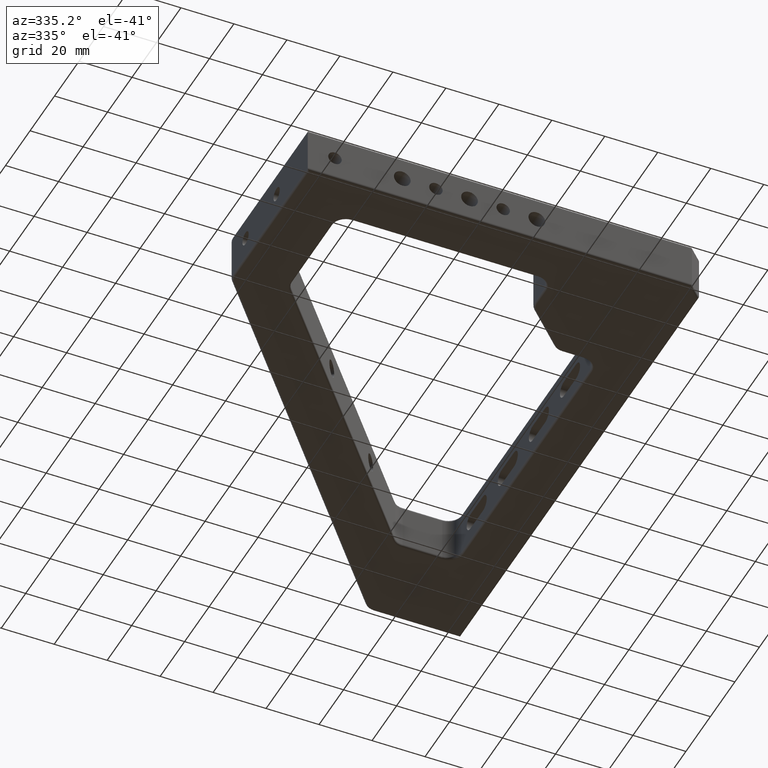
[diagram: clean part render]
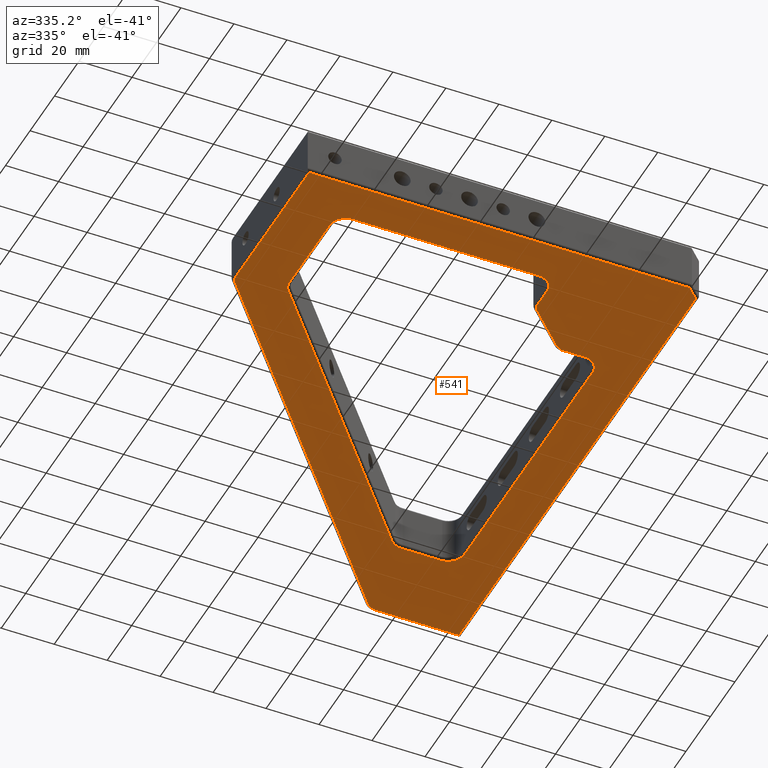
[diagram: same view with one face highlighted and labeled with its STEP entity id]
A machine part, auxiliary view. The second image highlights one B-rep face of the part: STEP entity #541.
In plain terms, the highlighted planar face has unit normal (0, 0, 1).
Its self-contained STEP definition (entity closure, byte-faithful):
#15 = LINE ( 'NONE', #1854, #3603 ) ;
#23 = LINE ( 'NONE', #4081, #1819 ) ;
#29 = AXIS2_PLACEMENT_3D ( 'NONE', #633, #3144, #986 ) ;
#39 = CARTESIAN_POINT ( 'NONE',  ( 100.9999999999999900, 23.00000000000000700, 0.0000000000000000000 ) ) ;
#80 = DIRECTION ( 'NONE',  ( 1.000000000000000000, 0.0000000000000000000, 0.0000000000000000000 ) ) ;
#81 = EDGE_CURVE ( 'NONE', #1273, #723, #3414, .T. ) ;
#97 = FACE_BOUND ( 'NONE', #1775, .T. ) ;
#108 = DIRECTION ( 'NONE',  ( -0.0000000000000000000, 0.0000000000000000000, 1.000000000000000000 ) ) ;
#116 = VECTOR ( 'NONE', #2713, 1000.000000000000000 ) ;
#130 = CARTESIAN_POINT ( 'NONE',  ( 101.0000000000000000, 30.92893218813452800, 0.0000000000000000000 ) ) ;
#213 = CIRCLE ( 'NONE', #1871, 6.000000000000005300 ) ;
#236 = LINE ( 'NONE', #3103, #116 ) ;
#330 = CIRCLE ( 'NONE', #29, 4.000000000000003600 ) ;
#363 = VERTEX_POINT ( 'NONE', #4620 ) ;
#382 = DIRECTION ( 'NONE',  ( 3.444736514772037100E-017, 1.000000000000000000, -0.0000000000000000000 ) ) ;
#401 = CARTESIAN_POINT ( 'NONE',  ( -1.474514954580286200E-015, 17.00000000000000000, 0.0000000000000000000 ) ) ;
#409 = DIRECTION ( 'NONE',  ( 1.000000000000000000, 0.0000000000000000000, 0.0000000000000000000 ) ) ;
#412 = EDGE_CURVE ( 'NONE', #3543, #1273, #542, .T. ) ;
#479 = EDGE_CURVE ( 'NONE', #2958, #1460, #2234, .T. ) ;
#480 = CIRCLE ( 'NONE', #1695, 5.999999999999998200 ) ;
#515 = ORIENTED_EDGE ( 'NONE', *, *, #3489, .T. ) ;
#541 = ADVANCED_FACE ( 'NONE', ( #1156, #97 ), #718, .F. ) ;
#542 = CIRCLE ( 'NONE', #2651, 4.000000000000003600 ) ;
#549 = VECTOR ( 'NONE', #1969, 1000.000000000000000 ) ;
#585 = VECTOR ( 'NONE', #3661, 1000.000000000000000 ) ;
#613 = ORIENTED_EDGE ( 'NONE', *, *, #4040, .T. ) ;
#619 = ORIENTED_EDGE ( 'NONE', *, *, #1654, .T. ) ;
#633 = CARTESIAN_POINT ( 'NONE',  ( 105.0000000000000100, 30.92893218813452400, 0.0000000000000000000 ) ) ;
#636 = CARTESIAN_POINT ( 'NONE',  ( 1.000000000000002200, 61.12848568033405200, 0.0000000000000000000 ) ) ;
#666 = ORIENTED_EDGE ( 'NONE', *, *, #4242, .T. ) ;
#675 = VERTEX_POINT ( 'NONE', #2955 ) ;
#679 = LINE ( 'NONE', #401, #4395 ) ;
#685 = CARTESIAN_POINT ( 'NONE',  ( -17.58898750380362900, 14.75891292722332300, 0.0000000000000000000 ) ) ;
#704 = DIRECTION ( 'NONE',  ( -0.0000000000000000000, 0.0000000000000000000, 1.000000000000000000 ) ) ;
#718 = PLANE ( 'NONE',  #866 ) ;
#723 = VERTEX_POINT ( 'NONE', #2662 ) ;
#731 = ORIENTED_EDGE ( 'NONE', *, *, #3276, .T. ) ;
#765 = VERTEX_POINT ( 'NONE', #3392 ) ;
#768 = ORIENTED_EDGE ( 'NONE', *, *, #1872, .T. ) ;
#795 = CARTESIAN_POINT ( 'NONE',  ( 20.40373334128611300, 60.03687448678822100, 0.0000000000000000000 ) ) ;
#835 = ORIENTED_EDGE ( 'NONE', *, *, #4431, .T. ) ;
#843 = VERTEX_POINT ( 'NONE', #2372 ) ;
#848 = CIRCLE ( 'NONE', #910, 4.000000000000003600 ) ;
#866 = AXIS2_PLACEMENT_3D ( 'NONE', #2517, #4304, #3229 ) ;
#910 = AXIS2_PLACEMENT_3D ( 'NONE', #2035, #4535, #2398 ) ;
#932 = CARTESIAN_POINT ( 'NONE',  ( -0.0000000000000000000, 1.000000000000000000, 0.0000000000000000000 ) ) ;
#975 = EDGE_CURVE ( 'NONE', #1885, #3543, #4418, .T. ) ;
#976 = DIRECTION ( 'NONE',  ( -0.0000000000000000000, 0.0000000000000000000, 1.000000000000000000 ) ) ;
#986 = DIRECTION ( 'NONE',  ( 1.000000000000000000, 0.0000000000000000000, 0.0000000000000000000 ) ) ;
#995 = ORIENTED_EDGE ( 'NONE', *, *, #975, .T. ) ;
#1071 = CARTESIAN_POINT ( 'NONE',  ( 24.99999999999999300, 56.18014882866899000, 0.0000000000000000000 ) ) ;
#1105 = VERTEX_POINT ( 'NONE', #636 ) ;
#1143 = CARTESIAN_POINT ( 'NONE',  ( 0.0000000000000000000, 165.9999999999999700, 0.0000000000000000000 ) ) ;
#1156 = FACE_OUTER_BOUND ( 'NONE', #3373, .T. ) ;
#1197 = DIRECTION ( 'NONE',  ( -8.673617379884037900E-017, -1.000000000000000000, 0.0000000000000000000 ) ) ;
#1236 = DIRECTION ( 'NONE',  ( -0.7071067811865455700, -0.7071067811865493500, -0.0000000000000000000 ) ) ;
#1273 = VERTEX_POINT ( 'NONE', #4343 ) ;
#1275 = DIRECTION ( 'NONE',  ( 0.7071067811865486800, 0.7071067811865464600, 0.0000000000000000000 ) ) ;
#1284 = VERTEX_POINT ( 'NONE', #3998 ) ;
#1289 = CARTESIAN_POINT ( 'NONE',  ( 94.99999999999998600, 17.00000000000000700, 0.0000000000000000000 ) ) ;
#1292 = VECTOR ( 'NONE', #1275, 999.9999999999998900 ) ;
#1313 = CARTESIAN_POINT ( 'NONE',  ( -30.22996064225292700, 25.36594882541796600, 0.0000000000000000000 ) ) ;
#1324 = DIRECTION ( 'NONE',  ( -2.413528314402514600E-016, 1.000000000000000000, -0.0000000000000000000 ) ) ;
#1353 = EDGE_CURVE ( 'NONE', #363, #1105, #2501, .T. ) ;
#1360 = AXIS2_PLACEMENT_3D ( 'NONE', #1071, #3570, #1427 ) ;
#1398 = CARTESIAN_POINT ( 'NONE',  ( 127.0000000000000000, 165.9999999999999700, 0.0000000000000000000 ) ) ;
#1421 = LINE ( 'NONE', #1143, #585 ) ;
#1427 = DIRECTION ( 'NONE',  ( 1.000000000000000000, 0.0000000000000000000, 0.0000000000000000000 ) ) ;
#1450 = VERTEX_POINT ( 'NONE', #3996 ) ;
#1460 = VERTEX_POINT ( 'NONE', #795 ) ;
#1499 = EDGE_CURVE ( 'NONE', #4379, #4539, #3001, .T. ) ;
#1543 = EDGE_CURVE ( 'NONE', #3307, #3878, #15, .T. ) ;
#1551 = EDGE_CURVE ( 'NONE', #1105, #1885, #1812, .T. ) ;
#1572 = DIRECTION ( 'NONE',  ( -0.0000000000000000000, 0.0000000000000000000, 1.000000000000000000 ) ) ;
#1588 = CIRCLE ( 'NONE', #4392, 6.000000000000005300 ) ;
#1617 = CARTESIAN_POINT ( 'NONE',  ( 94.99999999999998600, 23.00000000000001100, 0.0000000000000000000 ) ) ;
#1654 = EDGE_CURVE ( 'NONE', #4539, #1284, #1421, .T. ) ;
#1695 = AXIS2_PLACEMENT_3D ( 'NONE', #3128, #976, #3493 ) ;
#1775 = EDGE_LOOP ( 'NONE', ( #2534, #768, #3153, #731, #3530, #4115, #1937, #613, #835, #2750, #619, #3411, #3989, #2431, #666, #3035 ) ) ;
#1794 = EDGE_CURVE ( 'NONE', #1284, #2958, #2874, .T. ) ;
#1812 = CIRCLE ( 'NONE', #3348, 4.000000000000000000 ) ;
#1815 = DIRECTION ( 'NONE',  ( 1.000000000000000000, 8.673617379884035500E-017, 0.0000000000000000000 ) ) ;
#1819 = VECTOR ( 'NONE', #1197, 1000.000000000000000 ) ;
#1854 = CARTESIAN_POINT ( 'NONE',  ( 100.9999999999999700, -9.344377123928399200E-014, 0.0000000000000000000 ) ) ;
#1871 = AXIS2_PLACEMENT_3D ( 'NONE', #2860, #704, #3223 ) ;
#1872 = EDGE_CURVE ( 'NONE', #1912, #3307, #1588, .T. ) ;
#1885 = VERTEX_POINT ( 'NONE', #2347 ) ;
#1905 = CARTESIAN_POINT ( 'NONE',  ( 18.99999999999999300, 23.00000000000000400, 0.0000000000000000000 ) ) ;
#1912 = VERTEX_POINT ( 'NONE', #1289 ) ;
#1921 = EDGE_CURVE ( 'NONE', #843, #363, #4239, .T. ) ;
#1937 = ORIENTED_EDGE ( 'NONE', *, *, #4127, .T. ) ;
#1963 = CARTESIAN_POINT ( 'NONE',  ( 144.2928932188134500, 0.7071067811865311400, 0.0000000000000000000 ) ) ;
#1969 = DIRECTION ( 'NONE',  ( 1.000000000000000000, -0.0000000000000000000, 0.0000000000000000000 ) ) ;
#1986 = DIRECTION ( 'NONE',  ( 1.000000000000000000, 0.0000000000000000000, 0.0000000000000000000 ) ) ;
#2018 = DIRECTION ( 'NONE',  ( -1.000000000000000000, -0.0000000000000000000, -0.0000000000000000000 ) ) ;
#2035 = CARTESIAN_POINT ( 'NONE',  ( 119.0710678118655200, 44.99999999999999300, 0.0000000000000000000 ) ) ;
#2196 = CARTESIAN_POINT ( 'NONE',  ( 102.1715728752538300, 33.75735931288072300, 0.0000000000000000000 ) ) ;
#2210 = EDGE_CURVE ( 'NONE', #1450, #1912, #679, .T. ) ;
#2234 = LINE ( 'NONE', #685, #4032 ) ;
#2235 = DIRECTION ( 'NONE',  ( 0.0000000000000000000, -0.0000000000000000000, -1.000000000000000000 ) ) ;
#2265 = CARTESIAN_POINT ( 'NONE',  ( 127.0000000000000000, 159.9999999999999700, 0.0000000000000000000 ) ) ;
#2347 = CARTESIAN_POINT ( 'NONE',  ( 1.935822227524068600, 63.69963611908018200, 0.0000000000000000000 ) ) ;
#2371 = LINE ( 'NONE', #3435, #1292 ) ;
#2372 = CARTESIAN_POINT ( 'NONE',  ( 144.5857864376268900, 0.9999999999999943400, 0.0000000000000000000 ) ) ;
#2378 = CARTESIAN_POINT ( 'NONE',  ( 133.0000000000000000, 159.9999999999999700, 0.0000000000000000000 ) ) ;
#2395 = EDGE_CURVE ( 'NONE', #3487, #675, #848, .T. ) ;
#2398 = DIRECTION ( 'NONE',  ( 1.000000000000000000, 0.0000000000000000000, 0.0000000000000000000 ) ) ;
#2401 = LINE ( 'NONE', #3105, #4196 ) ;
#2419 = VERTEX_POINT ( 'NONE', #2751 ) ;
#2431 = ORIENTED_EDGE ( 'NONE', *, *, #4567, .T. ) ;
#2501 = LINE ( 'NONE', #3955, #4295 ) ;
#2505 = VECTOR ( 'NONE', #3830, 1000.000000000000000 ) ;
#2517 = CARTESIAN_POINT ( 'NONE',  ( 0.0000000000000000000, 0.0000000000000000000, 0.0000000000000000000 ) ) ;
#2534 = ORIENTED_EDGE ( 'NONE', *, *, #2210, .T. ) ;
#2558 = DIRECTION ( 'NONE',  ( 0.0000000000000000000, -0.0000000000000000000, -1.000000000000000000 ) ) ;
#2618 = DIRECTION ( 'NONE',  ( 1.000000000000000000, 0.0000000000000000000, 0.0000000000000000000 ) ) ;
#2636 = AXIS2_PLACEMENT_3D ( 'NONE', #2265, #108, #2618 ) ;
#2651 = AXIS2_PLACEMENT_3D ( 'NONE', #2909, #2558, #409 ) ;
#2662 = CARTESIAN_POINT ( 'NONE',  ( 149.0000000000000000, 199.0000000000000000, 0.0000000000000000000 ) ) ;
#2713 = DIRECTION ( 'NONE',  ( -0.0000000000000000000, -1.000000000000000000, -0.0000000000000000000 ) ) ;
#2717 = EDGE_CURVE ( 'NONE', #4106, #3487, #2371, .T. ) ;
#2730 = VECTOR ( 'NONE', #3623, 1000.000000000000000 ) ;
#2750 = ORIENTED_EDGE ( 'NONE', *, *, #1499, .T. ) ;
#2751 = CARTESIAN_POINT ( 'NONE',  ( 133.0000000000000300, 54.99999999999997900, 0.0000000000000000000 ) ) ;
#2774 = EDGE_CURVE ( 'NONE', #723, #765, #236, .T. ) ;
#2860 = CARTESIAN_POINT ( 'NONE',  ( 127.0000000000000300, 54.99999999999997900, 0.0000000000000000000 ) ) ;
#2874 = CIRCLE ( 'NONE', #2935, 6.000000000000005300 ) ;
#2909 = CARTESIAN_POINT ( 'NONE',  ( 117.3315382907749700, 195.0000000000000000, 0.0000000000000000000 ) ) ;
#2935 = AXIS2_PLACEMENT_3D ( 'NONE', #3714, #1572, #4087 ) ;
#2955 = CARTESIAN_POINT ( 'NONE',  ( 119.0710678118655200, 48.99999999999999300, 0.0000000000000000000 ) ) ;
#2958 = VERTEX_POINT ( 'NONE', #3204 ) ;
#3001 = CIRCLE ( 'NONE', #2636, 6.000000000000005300 ) ;
#3030 = VERTEX_POINT ( 'NONE', #1905 ) ;
#3035 = ORIENTED_EDGE ( 'NONE', *, *, #4450, .T. ) ;
#3103 = CARTESIAN_POINT ( 'NONE',  ( 149.0000000000000000, 0.0000000000000000000, 0.0000000000000000000 ) ) ;
#3105 = CARTESIAN_POINT ( 'NONE',  ( 133.0000000000000300, 3.209992658155345100E-014, 0.0000000000000000000 ) ) ;
#3128 = CARTESIAN_POINT ( 'NONE',  ( 24.99999999999999300, 23.00000000000000400, 0.0000000000000000000 ) ) ;
#3144 = DIRECTION ( 'NONE',  ( 0.0000000000000000000, -0.0000000000000000000, -1.000000000000000000 ) ) ;
#3146 = ORIENTED_EDGE ( 'NONE', *, *, #2774, .T. ) ;
#3153 = ORIENTED_EDGE ( 'NONE', *, *, #1543, .T. ) ;
#3199 = DIRECTION ( 'NONE',  ( -0.6427876096865370300, -0.7660444431189799000, 0.0000000000000000000 ) ) ;
#3204 = CARTESIAN_POINT ( 'NONE',  ( 107.5189321680294900, 163.8567256581191900, 0.0000000000000000000 ) ) ;
#3223 = DIRECTION ( 'NONE',  ( 1.000000000000000000, 0.0000000000000000000, 0.0000000000000000000 ) ) ;
#3229 = DIRECTION ( 'NONE',  ( 1.000000000000000000, 0.0000000000000000000, 0.0000000000000000000 ) ) ;
#3258 = VERTEX_POINT ( 'NONE', #3473 ) ;
#3266 = CARTESIAN_POINT ( 'NONE',  ( 2.266705341943030000E-014, 49.00000000000004300, 0.0000000000000000000 ) ) ;
#3272 = VECTOR ( 'NONE', #2018, 1000.000000000000000 ) ;
#3276 = EDGE_CURVE ( 'NONE', #3878, #4106, #330, .T. ) ;
#3307 = VERTEX_POINT ( 'NONE', #39 ) ;
#3348 = AXIS2_PLACEMENT_3D ( 'NONE', #4388, #2235, #80 ) ;
#3373 = EDGE_LOOP ( 'NONE', ( #515, #3417, #4437, #4647, #995, #3478, #4484, #3146 ) ) ;
#3392 = CARTESIAN_POINT ( 'NONE',  ( 149.0000000000000000, 5.414213562373105600, 0.0000000000000000000 ) ) ;
#3411 = ORIENTED_EDGE ( 'NONE', *, *, #1794, .T. ) ;
#3414 = LINE ( 'NONE', #4119, #549 ) ;
#3417 = ORIENTED_EDGE ( 'NONE', *, *, #1921, .T. ) ;
#3435 = CARTESIAN_POINT ( 'NONE',  ( 34.20710678118639000, -34.20710678118648900, 0.0000000000000000000 ) ) ;
#3473 = CARTESIAN_POINT ( 'NONE',  ( 127.0000000000000300, 48.99999999999998600, 0.0000000000000000000 ) ) ;
#3478 = ORIENTED_EDGE ( 'NONE', *, *, #412, .T. ) ;
#3487 = VERTEX_POINT ( 'NONE', #4473 ) ;
#3489 = EDGE_CURVE ( 'NONE', #765, #843, #4591, .T. ) ;
#3493 = DIRECTION ( 'NONE',  ( 1.000000000000000000, 0.0000000000000000000, 0.0000000000000000000 ) ) ;
#3530 = ORIENTED_EDGE ( 'NONE', *, *, #2717, .T. ) ;
#3543 = VERTEX_POINT ( 'NONE', #4144 ) ;
#3557 = LINE ( 'NONE', #3266, #2730 ) ;
#3570 = DIRECTION ( 'NONE',  ( -0.0000000000000000000, 0.0000000000000000000, 1.000000000000000000 ) ) ;
#3603 = VECTOR ( 'NONE', #4005, 1000.000000000000000 ) ;
#3609 = CIRCLE ( 'NONE', #1360, 5.999999999999998200 ) ;
#3621 = VECTOR ( 'NONE', #1236, 1000.000000000000100 ) ;
#3623 = DIRECTION ( 'NONE',  ( 1.000000000000000000, -4.625929269271485900E-016, 0.0000000000000000000 ) ) ;
#3661 = DIRECTION ( 'NONE',  ( -1.000000000000000000, 0.0000000000000000000, -0.0000000000000000000 ) ) ;
#3714 = CARTESIAN_POINT ( 'NONE',  ( 112.1151988267433900, 159.9999999999999700, 0.0000000000000000000 ) ) ;
#3808 = VERTEX_POINT ( 'NONE', #4018 ) ;
#3830 = DIRECTION ( 'NONE',  ( 0.6427876096865370300, 0.7660444431189799000, -0.0000000000000000000 ) ) ;
#3878 = VERTEX_POINT ( 'NONE', #130 ) ;
#3955 = CARTESIAN_POINT ( 'NONE',  ( 1.000000000000000000, -3.444736514772037100E-017, 0.0000000000000000000 ) ) ;
#3989 = ORIENTED_EDGE ( 'NONE', *, *, #479, .T. ) ;
#3996 = CARTESIAN_POINT ( 'NONE',  ( 24.99999999999999300, 17.00000000000000000, 0.0000000000000000000 ) ) ;
#3998 = CARTESIAN_POINT ( 'NONE',  ( 112.1151988267433900, 165.9999999999999700, 0.0000000000000000000 ) ) ;
#4005 = DIRECTION ( 'NONE',  ( 9.251858538542971800E-016, 1.000000000000000000, 0.0000000000000000000 ) ) ;
#4018 = CARTESIAN_POINT ( 'NONE',  ( 18.99999999999999600, 56.18014882866899000, 0.0000000000000000000 ) ) ;
#4032 = VECTOR ( 'NONE', #3199, 1000.000000000000000 ) ;
#4040 = EDGE_CURVE ( 'NONE', #3258, #2419, #213, .T. ) ;
#4081 = CARTESIAN_POINT ( 'NONE',  ( 18.99999999999998900, -1.647987302177966300E-015, 0.0000000000000000000 ) ) ;
#4087 = DIRECTION ( 'NONE',  ( 1.000000000000000000, 0.0000000000000000000, 0.0000000000000000000 ) ) ;
#4106 = VERTEX_POINT ( 'NONE', #2196 ) ;
#4115 = ORIENTED_EDGE ( 'NONE', *, *, #2395, .T. ) ;
#4119 = CARTESIAN_POINT ( 'NONE',  ( 0.0000000000000000000, 199.0000000000000000, 0.0000000000000000000 ) ) ;
#4127 = EDGE_CURVE ( 'NONE', #675, #3258, #3557, .T. ) ;
#4135 = DIRECTION ( 'NONE',  ( -0.0000000000000000000, 0.0000000000000000000, 1.000000000000000000 ) ) ;
#4144 = CARTESIAN_POINT ( 'NONE',  ( 114.2673605182990600, 197.5711504387461400, 0.0000000000000000000 ) ) ;
#4196 = VECTOR ( 'NONE', #1324, 1000.000000000000000 ) ;
#4239 = LINE ( 'NONE', #932, #3272 ) ;
#4242 = EDGE_CURVE ( 'NONE', #3808, #3030, #23, .T. ) ;
#4295 = VECTOR ( 'NONE', #382, 1000.000000000000000 ) ;
#4304 = DIRECTION ( 'NONE',  ( -0.0000000000000000000, 0.0000000000000000000, 1.000000000000000000 ) ) ;
#4343 = CARTESIAN_POINT ( 'NONE',  ( 117.3315382907749700, 199.0000000000000000, 0.0000000000000000000 ) ) ;
#4379 = VERTEX_POINT ( 'NONE', #2378 ) ;
#4388 = CARTESIAN_POINT ( 'NONE',  ( 5.000000000000002700, 61.12848568033405200, 0.0000000000000000000 ) ) ;
#4392 = AXIS2_PLACEMENT_3D ( 'NONE', #1617, #4135, #1986 ) ;
#4395 = VECTOR ( 'NONE', #1815, 1000.000000000000000 ) ;
#4418 = LINE ( 'NONE', #1313, #2505 ) ;
#4431 = EDGE_CURVE ( 'NONE', #2419, #4379, #2401, .T. ) ;
#4437 = ORIENTED_EDGE ( 'NONE', *, *, #1353, .T. ) ;
#4450 = EDGE_CURVE ( 'NONE', #3030, #1450, #480, .T. ) ;
#4473 = CARTESIAN_POINT ( 'NONE',  ( 116.2426406871193300, 47.82842712474619900, 0.0000000000000000000 ) ) ;
#4484 = ORIENTED_EDGE ( 'NONE', *, *, #81, .T. ) ;
#4535 = DIRECTION ( 'NONE',  ( 0.0000000000000000000, -0.0000000000000000000, -1.000000000000000000 ) ) ;
#4539 = VERTEX_POINT ( 'NONE', #1398 ) ;
#4567 = EDGE_CURVE ( 'NONE', #1460, #3808, #3609, .T. ) ;
#4591 = LINE ( 'NONE', #1963, #3621 ) ;
#4620 = CARTESIAN_POINT ( 'NONE',  ( 1.000000000000000000, 1.000000000000000000, 0.0000000000000000000 ) ) ;
#4647 = ORIENTED_EDGE ( 'NONE', *, *, #1551, .T. ) ;